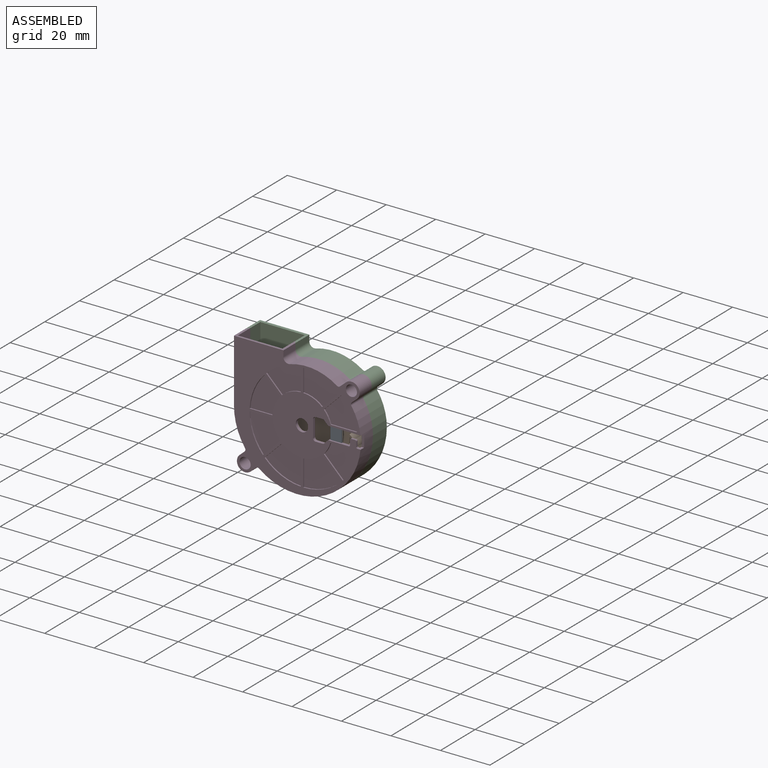
[diagram: assembled view]
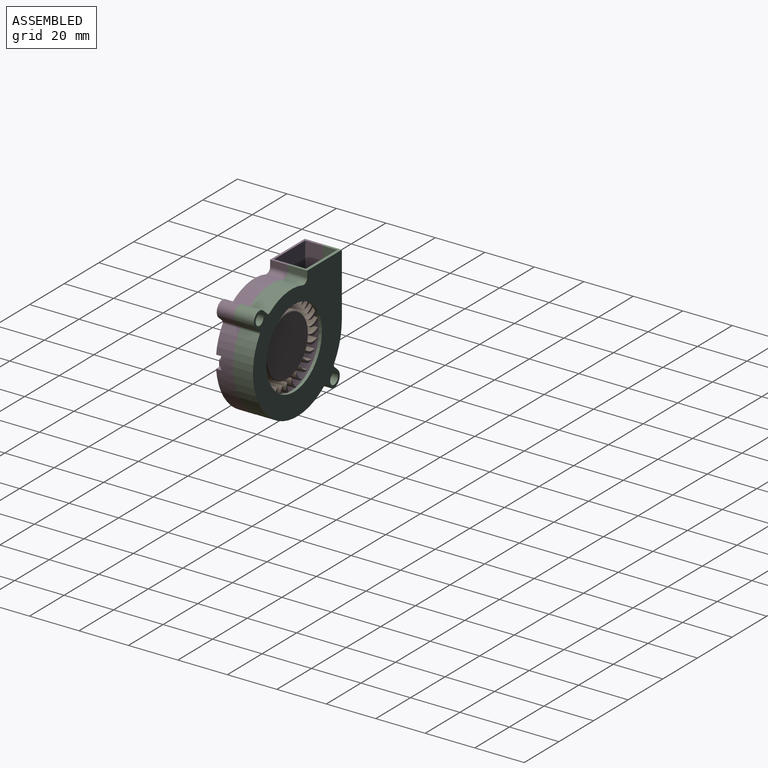
[diagram: assembled view, second angle]
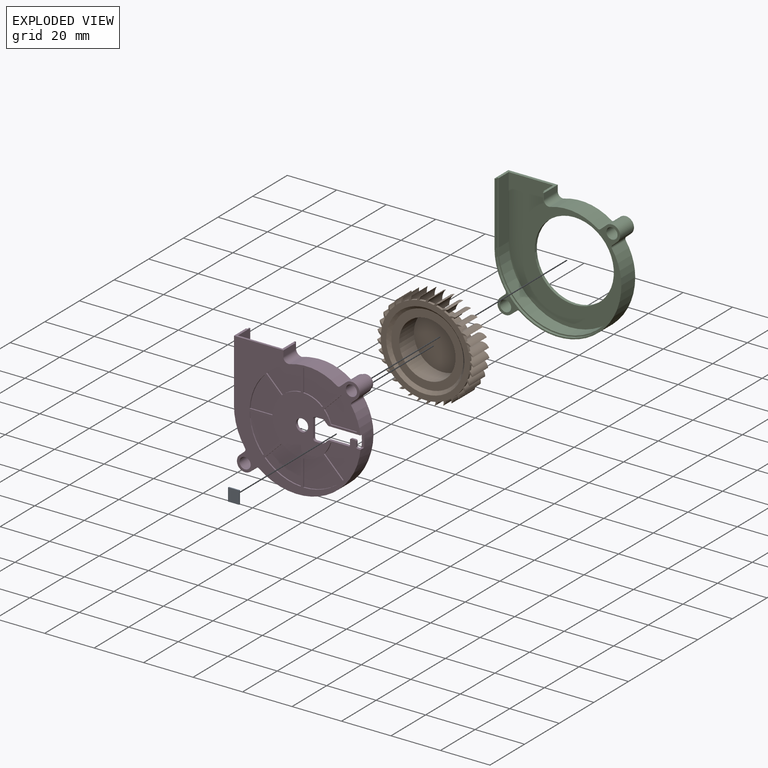
[diagram: exploded view]
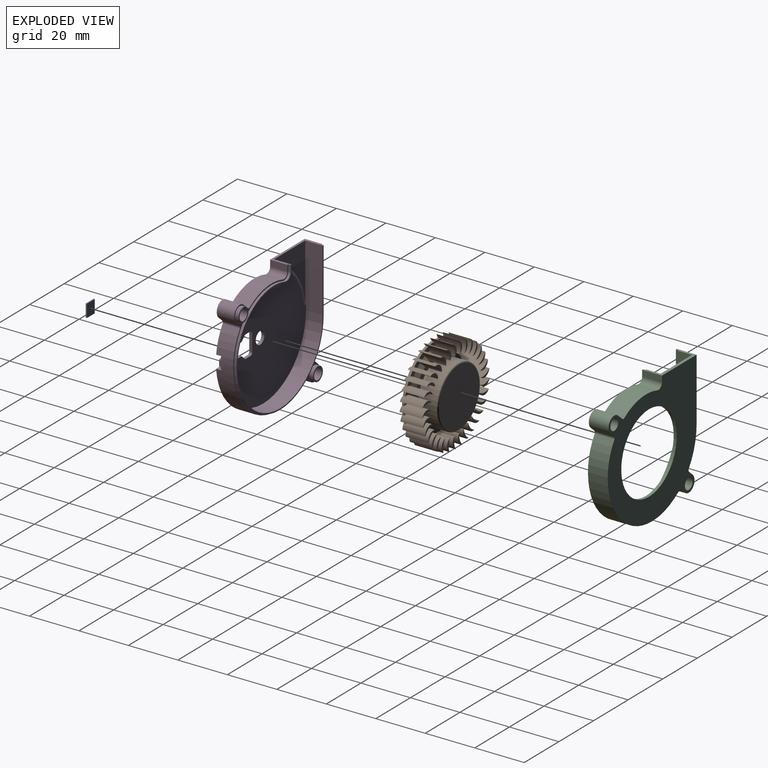
[diagram: exploded view, second angle]
ASSEMBLY  parts=4 mates=3
PART A: 6 faces, bbox 4.5x0.5x5.2 mm
  f0: plane 4.5x0.5mm, normal (0,0,-1), area 2.2mm2, adj f1,f3,f4,f5
  f1: plane 5.2x0.5mm, normal (1,0,0), area 2.6mm2, adj f0,f2,f4,f5
  f2: plane 4.5x0.5mm, normal (0,0,1), area 2.2mm2, adj f1,f3,f4,f5
  f3: plane 5.2x0.5mm, normal (-1,0,0), area 2.6mm2, adj f0,f2,f4,f5
  f4: plane 5.2x4.5mm, normal (0,-1,0), area 23.4mm2, adj f0,f1,f2,f3
  f5: plane 5.2x4.5mm, normal (0,1,0), area 23.4mm2, adj f0,f1,f2,f3
PART B: 207 faces, bbox 39x10.5x38.9 mm
  f0: cylinder r=11.4mm len=22.8mm, axis (0,-1,0), area 608.8mm2, adj f205,f206
  f1: cone r=14.6mm half-angle=45deg, axis (0,-1,0), area 162.1mm2, adj f119,f205
  f2: cylinder r=2.92mm len=9.2mm, axis (0,-1,0), area 52mm2, adj f85,f86,f87,f119,f143,f144
  f3: cylinder r=2.92mm len=9.2mm, axis (0,-1,0), area 52mm2, adj f88,f89,f90,f119,f141,f142
  f4: cylinder r=2.92mm len=9.2mm, axis (0,-1,0), area 52mm2, adj f91,f92,f93,f119,f139,f140
  f5: cylinder r=5.73mm len=9.2mm, axis (0,-1,0), area 44mm2, adj f6,f91,f92,f93,f119,f138
  f6: cylinder r=2.92mm len=9.2mm, axis (0,-1,0), area 52mm2, adj f5,f94,f95,f96,f119,f138
  f7: cylinder r=5.73mm len=9.2mm, axis (0,-1,0), area 44mm2, adj f8,f94,f95,f96,f119,f137
  f8: cylinder r=2.92mm len=9.2mm, axis (0,-1,0), area 52mm2, adj f7,f97,f98,f99,f119,f137
  f9: cylinder r=5.73mm len=9.2mm, axis (0,-1,0), area 44mm2, adj f10,f97,f98,f99,f119,f136
  f10: cylinder r=2.92mm len=9.2mm, axis (0,-1,0), area 52mm2, adj f9,f100,f101,f102,f119,f136
  f11: cylinder r=5.73mm len=9.2mm, axis (0,-1,0), area 44mm2, adj f12,f100,f101,f102,f119,f135
  f12: cylinder r=2.92mm len=9.2mm, axis (0,-1,0), area 52mm2, adj f11,f103,f104,f105,f119,f135
  f13: cylinder r=5.73mm len=9.2mm, axis (0,-1,0), area 44mm2, adj f14,f103,f104,f105,f119,f134
  f14: cylinder r=2.92mm len=9.2mm, axis (0,-1,0), area 52mm2, adj f13,f106,f107,f108,f119,f134
  f15: cylinder r=2.92mm len=9.2mm, axis (0,-1,0), area 52mm2, adj f109,f110,f111,f119,f132,f133
  f16: cylinder r=2.92mm len=9.2mm, axis (0,-1,0), area 52mm2, adj f112,f113,f114,f119,f130,f131
  f17: cylinder r=2.92mm len=9.2mm, axis (0,-1,0), area 52mm2, adj f115,f116,f117,f119,f128,f129
  f18: torus R=11.75mm, axis (0,1,0), area 59.6mm2, adj f19,f121
  f19: cylinder r=12.25mm len=24.5mm, axis (0,-1,0), area 577.3mm2, adj f18,f120
  f20: cone r=14.5mm half-angle=45deg, axis (0,-1,0), area 5.5mm2, adj f118,f120,f123,f125
  f21: cylinder r=18mm len=2.51mm, axis (0,-1,0), area 2.5mm2, adj f118,f119,f123,f125
  f22: cylinder r=18mm len=2.35mm, axis (0,-1,0), area 2.5mm2, adj f24,f119,f200,f202
  f23: cylinder r=18mm len=2.47mm, axis (0,-1,0), area 2.5mm2, adj f25,f119,f122,f203
  f24: plane 2.87x2.61mm, normal (0,1,0), area 4.7mm2, adj f22,f26,f200,f202
  f25: plane 2.53x2.46mm, normal (0,1,0), area 4.7mm2, adj f23,f27,f122,f203
  f26: cone r=14.5mm half-angle=45deg, axis (0,-1,0), area 5.5mm2, adj f24,f120,f200,f202
  f27: cone r=14.5mm half-angle=45deg, axis (0,-1,0), area 5.5mm2, adj f25,f120,f122,f203
  f28: cylinder r=18mm len=2.14mm, axis (0,-1,0), area 2.5mm2, adj f29,f119,f197,f199
  f29: plane 3.17x2.78mm, normal (0,1,0), area 4.7mm2, adj f28,f30,f197,f199
  f30: cone r=14.5mm half-angle=45deg, axis (0,-1,0), area 5.5mm2, adj f29,f120,f197,f199
  f31: cylinder r=18mm len=1.86mm, axis (0,-1,0), area 2.5mm2, adj f32,f119,f194,f196
  f32: plane 3.37x2.85mm, normal (0,1,0), area 4.7mm2, adj f31,f33,f194,f196
  f33: cone r=14.5mm half-angle=45deg, axis (0,-1,0), area 5.5mm2, adj f32,f120,f194,f196
  f34: cylinder r=18mm len=2.01mm, axis (0,-1,0), area 2.5mm2, adj f35,f119,f191,f193
  f35: plane 3.44x2.81mm, normal (0,1,0), area 4.7mm2, adj f34,f36,f191,f193
  f36: cone r=14.5mm half-angle=45deg, axis (0,-1,0), area 5.5mm2, adj f35,f120,f191,f193
  f37: cylinder r=18mm len=2.25mm, axis (0,-1,0), area 2.5mm2, adj f38,f119,f188,f190
  f38: plane 3.38x2.68mm, normal (0,1,0), area 4.7mm2, adj f37,f39,f188,f190
  f39: cone r=14.5mm half-angle=45deg, axis (0,-1,0), area 5.5mm2, adj f38,f120,f188,f190
  f40: cylinder r=18mm len=2.42mm, axis (0,-1,0), area 2.5mm2, adj f41,f119,f185,f187
  f41: plane 3.21x2.44mm, normal (0,1,0), area 4.7mm2, adj f40,f42,f185,f187
  f42: cone r=14.5mm half-angle=45deg, axis (0,-1,0), area 5.5mm2, adj f41,f120,f185,f187
  f43: cylinder r=18mm len=2.5mm, axis (0,-1,0), area 2.5mm2, adj f44,f119,f182,f184
  f44: plane 2.92x2.12mm, normal (0,1,0), area 4.7mm2, adj f43,f45,f182,f184
  f45: cone r=14.5mm half-angle=45deg, axis (0,-1,0), area 5.5mm2, adj f44,f120,f182,f184
  f46: cylinder r=18mm len=2.49mm, axis (0,-1,0), area 2.5mm2, adj f47,f119,f179,f181
  f47: plane 2.6x2.34mm, normal (0,1,0), area 4.7mm2, adj f46,f48,f179,f181
  f48: cone r=14.5mm half-angle=45deg, axis (0,-1,0), area 5.5mm2, adj f47,f120,f179,f181
  f49: cylinder r=18mm len=2.39mm, axis (0,-1,0), area 2.5mm2, adj f50,f119,f176,f178
  f50: plane 2.77x2.56mm, normal (0,1,0), area 4.7mm2, adj f49,f51,f176,f178
  f51: cone r=14.5mm half-angle=45deg, axis (0,-1,0), area 5.5mm2, adj f50,f120,f176,f178
  f52: cylinder r=18mm len=2.2mm, axis (0,-1,0), area 2.5mm2, adj f53,f119,f173,f175
  f53: plane 3.11x2.75mm, normal (0,1,0), area 4.7mm2, adj f52,f54,f173,f175
  f54: cone r=14.5mm half-angle=45deg, axis (0,-1,0), area 5.5mm2, adj f53,f120,f173,f175
  f55: cylinder r=18mm len=1.94mm, axis (0,-1,0), area 2.5mm2, adj f56,f119,f170,f172
  f56: plane 3.33x2.84mm, normal (0,1,0), area 4.7mm2, adj f55,f57,f170,f172
  f57: cone r=14.5mm half-angle=45deg, axis (0,-1,0), area 5.5mm2, adj f56,f120,f170,f172
  f58: cylinder r=18mm len=1.93mm, axis (0,-1,0), area 2.5mm2, adj f59,f119,f167,f169
  f59: plane 3.43x2.83mm, normal (0,1,0), area 4.7mm2, adj f58,f60,f167,f169
  f60: cone r=14.5mm half-angle=45deg, axis (0,-1,0), area 5.5mm2, adj f59,f120,f167,f169
  f61: cylinder r=18mm len=2.2mm, axis (0,-1,0), area 2.5mm2, adj f62,f119,f164,f166
  f62: plane 3.41x2.72mm, normal (0,1,0), area 4.7mm2, adj f61,f63,f164,f166
  f63: cone r=14.5mm half-angle=45deg, axis (0,-1,0), area 5.5mm2, adj f62,f120,f164,f166
  f64: cylinder r=18mm len=2.39mm, axis (0,-1,0), area 2.5mm2, adj f65,f119,f161,f163
  f65: plane 3.26x2.51mm, normal (0,1,0), area 4.7mm2, adj f64,f66,f161,f163
  f66: cone r=14.5mm half-angle=45deg, axis (0,-1,0), area 5.5mm2, adj f65,f120,f161,f163
  f67: cylinder r=18mm len=2.49mm, axis (0,-1,0), area 2.5mm2, adj f68,f119,f158,f160
  f68: plane 3x2.21mm, normal (0,1,0), area 4.7mm2, adj f67,f69,f158,f160
  f69: cone r=14.5mm half-angle=45deg, axis (0,-1,0), area 5.5mm2, adj f68,f120,f158,f160
  f70: cylinder r=18mm len=2.5mm, axis (0,-1,0), area 2.5mm2, adj f71,f119,f155,f157
  f71: plane 2.67x2.22mm, normal (0,1,0), area 4.7mm2, adj f70,f72,f155,f157
  f72: cone r=14.5mm half-angle=45deg, axis (0,-1,0), area 5.5mm2, adj f71,f120,f155,f157
  f73: cylinder r=18mm len=2.42mm, axis (0,-1,0), area 2.5mm2, adj f74,f119,f152,f154
  f74: plane 2.67x2.5mm, normal (0,1,0), area 4.7mm2, adj f73,f75,f152,f154
  f75: cone r=14.5mm half-angle=45deg, axis (0,-1,0), area 5.5mm2, adj f74,f120,f152,f154
  f76: cylinder r=18mm len=2.26mm, axis (0,-1,0), area 2.5mm2, adj f77,f119,f149,f151
  f77: plane 3.04x2.71mm, normal (0,1,0), area 4.7mm2, adj f76,f78,f149,f151
  f78: cone r=14.5mm half-angle=45deg, axis (0,-1,0), area 5.5mm2, adj f77,f120,f149,f151
  f79: cylinder r=18mm len=2.01mm, axis (0,-1,0), area 2.5mm2, adj f80,f119,f146,f148
  f80: plane 3.29x2.83mm, normal (0,1,0), area 4.7mm2, adj f79,f81,f146,f148
  f81: cone r=14.5mm half-angle=45deg, axis (0,-1,0), area 5.5mm2, adj f80,f120,f146,f148
  f82: cylinder r=18mm len=1.85mm, axis (0,-1,0), area 2.5mm2, adj f83,f119,f143,f145
  f83: plane 3.42x2.84mm, normal (0,1,0), area 4.7mm2, adj f82,f84,f143,f145
  f84: cone r=14.5mm half-angle=45deg, axis (0,-1,0), area 5.5mm2, adj f83,f120,f143,f145
  f85: cylinder r=18mm len=2.14mm, axis (0,-1,0), area 2.5mm2, adj f2,f86,f119,f141
  f86: plane 3.43x2.76mm, normal (0,1,0), area 4.7mm2, adj f2,f85,f87,f141
  f87: cone r=14.5mm half-angle=45deg, axis (0,-1,0), area 5.3mm2, adj f2,f86,f120,f141
  f88: cylinder r=18mm len=2.35mm, axis (0,-1,0), area 2.5mm2, adj f3,f89,f119,f139
  f89: plane 3.31x2.57mm, normal (0,1,0), area 4.7mm2, adj f3,f88,f90,f139
  f90: cone r=14.5mm half-angle=45deg, axis (0,-1,0), area 5.3mm2, adj f3,f89,f120,f139
  f91: cylinder r=18mm len=2.47mm, axis (0,-1,0), area 2.5mm2, adj f4,f5,f92,f119
  f92: plane 3.08x2.29mm, normal (0,1,0), area 4.7mm2, adj f4,f5,f91,f93
  f93: cone r=14.5mm half-angle=45deg, axis (0,-1,0), area 5.2mm2, adj f4,f5,f92,f120
  f94: cylinder r=18mm len=2.51mm, axis (0,-1,0), area 2.5mm2, adj f6,f7,f95,f119
  f95: plane 2.74x2.11mm, normal (0,1,0), area 4.7mm2, adj f6,f7,f94,f96
  f96: cone r=14.5mm half-angle=45deg, axis (0,-1,0), area 5.5mm2, adj f6,f7,f95,f120
  f97: cylinder r=18mm len=2.45mm, axis (0,-1,0), area 2.5mm2, adj f8,f9,f98,f119
  f98: plane 2.57x2.48mm, normal (0,1,0), area 4.7mm2, adj f8,f9,f97,f99
  f99: cone r=14.5mm half-angle=45deg, axis (0,-1,0), area 5.5mm2, adj f8,f9,f98,f120
  f100: cylinder r=18mm len=2.31mm, axis (0,-1,0), area 2.5mm2, adj f10,f11,f101,f119
  f101: plane 2.96x2.66mm, normal (0,1,0), area 4.7mm2, adj f10,f11,f100,f102
  f102: cone r=14.5mm half-angle=45deg, axis (0,-1,0), area 5.5mm2, adj f10,f11,f101,f120
  f103: cylinder r=18mm len=2.08mm, axis (0,-1,0), area 2.5mm2, adj f12,f13,f104,f119
  f104: plane 3.23x2.81mm, normal (0,1,0), area 4.7mm2, adj f12,f13,f103,f105
  f105: cone r=14.5mm half-angle=45deg, axis (0,-1,0), area 5.5mm2, adj f12,f13,f104,f120
  f106: cylinder r=18mm len=1.78mm, axis (0,-1,0), area 2.5mm2, adj f14,f107,f119,f132
  f107: plane 3.4x2.85mm, normal (0,1,0), area 4.7mm2, adj f14,f106,f108,f132
  f108: cone r=14.5mm half-angle=45deg, axis (0,-1,0), area 5.5mm2, adj f14,f107,f120,f132
  f109: cylinder r=18mm len=2.08mm, axis (0,-1,0), area 2.5mm2, adj f15,f110,f119,f130
  f110: plane 3.44x2.79mm, normal (0,1,0), area 4.7mm2, adj f15,f109,f111,f130
  f111: cone r=14.5mm half-angle=45deg, axis (0,-1,0), area 5.5mm2, adj f15,f110,f120,f130
  f112: cylinder r=18mm len=2.3mm, axis (0,-1,0), area 2.5mm2, adj f16,f113,f119,f128
  f113: plane 3.35x2.63mm, normal (0,1,0), area 4.7mm2, adj f16,f112,f114,f128
  f114: cone r=14.5mm half-angle=45deg, axis (0,-1,0), area 5.5mm2, adj f16,f113,f120,f128
  f115: cylinder r=18mm len=2.45mm, axis (0,-1,0), area 2.5mm2, adj f17,f116,f119,f126
  f116: plane 3.14x2.37mm, normal (0,1,0), area 4.7mm2, adj f17,f115,f117,f126
  f117: cone r=14.5mm half-angle=45deg, axis (0,-1,0), area 5.5mm2, adj f17,f116,f120,f126
  f118: plane 2.83x2.05mm, normal (0,1,0), area 4.7mm2, adj f20,f21,f123,f125
  f119: plane 38.96x38.91mm, normal (0,-1,0), area 265.7mm2, adj f1,f2,f3,f4,f5,f6,f7,f8
  f120: plane 29x29mm, normal (0,1,0), area 189.1mm2, adj f19,f20,f26,f27,f30,f33,f36,f39
  f121: plane 23.5x23.5mm, normal (0,1,0), area 433.7mm2, adj f18
  f122: cylinder r=2.92mm len=9.2mm, axis (0,-1,0), area 52mm2, adj f23,f25,f27,f119,f123,f124
  f123: cylinder r=5.73mm len=9.2mm, axis (0,-1,0), area 44mm2, adj f20,f21,f118,f119,f122,f124
  f124: plane 5.03x1.97mm, normal (0,1,0), area 3.4mm2, adj f122,f123
  f125: cylinder r=2.92mm len=9.2mm, axis (0,-1,0), area 52mm2, adj f20,f21,f118,f119,f126,f127
  f126: cylinder r=5.73mm len=9.2mm, axis (0,-1,0), area 44mm2, adj f115,f116,f117,f119,f125,f127
  f127: plane 4.77x2.5mm, normal (0,1,0), area 3.4mm2, adj f125,f126
  f128: cylinder r=5.73mm len=9.2mm, axis (0,-1,0), area 44mm2, adj f17,f112,f113,f114,f119,f129
  f129: plane 4.34x3.06mm, normal (0,1,0), area 3.4mm2, adj f17,f128
  f130: cylinder r=5.73mm len=9.2mm, axis (0,-1,0), area 44mm2, adj f16,f109,f110,f111,f119,f131
  f131: plane 3.83x3.61mm, normal (0,1,0), area 3.4mm2, adj f16,f130
  f132: cylinder r=5.73mm len=9.2mm, axis (0,-1,0), area 44mm2, adj f15,f106,f107,f108,f119,f133
  f133: plane 4.13x3.29mm, normal (0,1,0), area 3.4mm2, adj f15,f132
  f134: plane 4.61x2.74mm, normal (0,1,0), area 3.4mm2, adj f13,f14
  f135: plane 4.94x2.19mm, normal (0,1,0), area 3.4mm2, adj f11,f12
  f136: plane 5.09x1.66mm, normal (0,1,0), area 3.4mm2, adj f9,f10
  f137: plane 5.06x1.83mm, normal (0,1,0), area 3.4mm2, adj f7,f8
  f138: plane 4.85x2.37mm, normal (0,1,0), area 3.4mm2, adj f5,f6
  f139: cylinder r=5.73mm len=9.2mm, axis (0,-1,0), area 44mm2, adj f4,f88,f89,f90,f119,f140
  f140: plane 4.46x2.92mm, normal (0,1,0), area 3.4mm2, adj f4,f139
  f141: cylinder r=5.73mm len=9.2mm, axis (0,-1,0), area 44mm2, adj f3,f85,f86,f87,f119,f142
  f142: plane 3.96x3.47mm, normal (0,1,0), area 3.4mm2, adj f3,f141
  f143: cylinder r=5.73mm len=9.2mm, axis (0,-1,0), area 44mm2, adj f2,f82,f83,f84,f119,f144
  f144: plane 4.01x3.43mm, normal (0,1,0), area 3.4mm2, adj f2,f143
  f145: cylinder r=2.92mm len=9.2mm, axis (0,-1,0), area 52mm2, adj f82,f83,f84,f119,f146,f147
  f146: cylinder r=5.73mm len=9.2mm, axis (0,-1,0), area 44mm2, adj f79,f80,f81,f119,f145,f147
  f147: plane 4.5x2.87mm, normal (0,1,0), area 3.4mm2, adj f145,f146
  f148: cylinder r=2.92mm len=9.2mm, axis (0,-1,0), area 52mm2, adj f79,f80,f81,f119,f149,f150
  f149: cylinder r=5.73mm len=9.2mm, axis (0,-1,0), area 44mm2, adj f76,f77,f78,f119,f148,f150
  f150: plane 4.87x2.32mm, normal (0,1,0), area 3.4mm2, adj f148,f149
  f151: cylinder r=2.92mm len=9.2mm, axis (0,-1,0), area 52mm2, adj f76,f77,f78,f119,f152,f153
  f152: cylinder r=5.73mm len=9.2mm, axis (0,-1,0), area 44mm2, adj f73,f74,f75,f119,f151,f153
  f153: plane 5.07x1.79mm, normal (0,1,0), area 3.4mm2, adj f151,f152
  f154: cylinder r=2.92mm len=9.2mm, axis (0,-1,0), area 52mm2, adj f73,f74,f75,f119,f155,f156
  f155: cylinder r=5.73mm len=9.2mm, axis (0,-1,0), area 44mm2, adj f70,f71,f72,f119,f154,f156
  f156: plane 5.09x1.71mm, normal (0,1,0), area 3.4mm2, adj f154,f155
  f157: cylinder r=2.92mm len=9.2mm, axis (0,-1,0), area 52mm2, adj f70,f71,f72,f119,f158,f159
  f158: cylinder r=5.73mm len=9.2mm, axis (0,-1,0), area 44mm2, adj f67,f68,f69,f119,f157,f159
  f159: plane 4.92x2.23mm, normal (0,1,0), area 3.4mm2, adj f157,f158
  f160: cylinder r=2.92mm len=9.2mm, axis (0,-1,0), area 52mm2, adj f67,f68,f69,f119,f161,f162
  f161: cylinder r=5.73mm len=9.2mm, axis (0,-1,0), area 44mm2, adj f64,f65,f66,f119,f160,f162
  f162: plane 4.57x2.78mm, normal (0,1,0), area 3.4mm2, adj f160,f161
  f163: cylinder r=2.92mm len=9.2mm, axis (0,-1,0), area 52mm2, adj f64,f65,f66,f119,f164,f165
  f164: cylinder r=5.73mm len=9.2mm, axis (0,-1,0), area 44mm2, adj f61,f62,f63,f119,f163,f165
  f165: plane 4.09x3.34mm, normal (0,1,0), area 3.4mm2, adj f163,f164
  f166: cylinder r=2.92mm len=9.2mm, axis (0,-1,0), area 52mm2, adj f61,f62,f63,f119,f167,f168
  f167: cylinder r=5.73mm len=9.2mm, axis (0,-1,0), area 44mm2, adj f58,f59,f60,f119,f166,f168
  f168: plane 3.88x3.56mm, normal (0,1,0), area 3.4mm2, adj f166,f167
  f169: cylinder r=2.92mm len=9.2mm, axis (0,-1,0), area 52mm2, adj f58,f59,f60,f119,f170,f171
  f170: cylinder r=5.73mm len=9.2mm, axis (0,-1,0), area 44mm2, adj f55,f56,f57,f119,f169,f171
  f171: plane 4.38x3.01mm, normal (0,1,0), area 3.4mm2, adj f169,f170
  f172: cylinder r=2.92mm len=9.2mm, axis (0,-1,0), area 52mm2, adj f55,f56,f57,f119,f173,f174
  f173: cylinder r=5.73mm len=9.2mm, axis (0,-1,0), area 44mm2, adj f52,f53,f54,f119,f172,f174
  f174: plane 4.8x2.46mm, normal (0,1,0), area 3.4mm2, adj f172,f173
  f175: cylinder r=2.92mm len=9.2mm, axis (0,-1,0), area 52mm2, adj f52,f53,f54,f119,f176,f177
  f176: cylinder r=5.73mm len=9.2mm, axis (0,-1,0), area 44mm2, adj f49,f50,f51,f119,f175,f177
  f177: plane 5.04x1.92mm, normal (0,1,0), area 3.4mm2, adj f175,f176
  f178: cylinder r=2.92mm len=9.2mm, axis (0,-1,0), area 52mm2, adj f49,f50,f51,f119,f179,f180
  f179: cylinder r=5.73mm len=9.2mm, axis (0,-1,0), area 44mm2, adj f46,f47,f48,f119,f178,f180
  f180: plane 5.1x1.58mm, normal (0,1,0), area 3.4mm2, adj f178,f179
  f181: cylinder r=2.92mm len=9.2mm, axis (0,-1,0), area 52mm2, adj f46,f47,f48,f119,f182,f183
  f182: cylinder r=5.73mm len=9.2mm, axis (0,-1,0), area 44mm2, adj f43,f44,f45,f119,f181,f183
  f183: plane 4.98x2.1mm, normal (0,1,0), area 3.4mm2, adj f181,f182
  f184: cylinder r=2.92mm len=9.2mm, axis (0,-1,0), area 52mm2, adj f43,f44,f45,f119,f185,f186
  f185: cylinder r=5.73mm len=9.2mm, axis (0,-1,0), area 44mm2, adj f40,f41,f42,f119,f184,f186
  f186: plane 4.68x2.64mm, normal (0,1,0), area 3.4mm2, adj f184,f185
  f187: cylinder r=2.92mm len=9.2mm, axis (0,-1,0), area 52mm2, adj f40,f41,f42,f119,f188,f189
  f188: cylinder r=5.73mm len=9.2mm, axis (0,-1,0), area 44mm2, adj f37,f38,f39,f119,f187,f189
  f189: plane 4.22x3.2mm, normal (0,1,0), area 3.4mm2, adj f187,f188
  f190: cylinder r=2.92mm len=9.2mm, axis (0,-1,0), area 52mm2, adj f37,f38,f39,f119,f191,f192
  f191: cylinder r=5.73mm len=9.2mm, axis (0,-1,0), area 44mm2, adj f34,f35,f36,f119,f190,f192
  f192: plane 3.74x3.7mm, normal (0,1,0), area 3.4mm2, adj f190,f191
  f193: cylinder r=2.92mm len=9.2mm, axis (0,-1,0), area 52mm2, adj f34,f35,f36,f119,f194,f195
  f194: cylinder r=5.73mm len=9.2mm, axis (0,-1,0), area 44mm2, adj f31,f32,f33,f119,f193,f195
  f195: plane 4.26x3.15mm, normal (0,1,0), area 3.4mm2, adj f193,f194
  f196: cylinder r=2.92mm len=9.2mm, axis (0,-1,0), area 52mm2, adj f31,f32,f33,f119,f197,f198
  f197: cylinder r=5.73mm len=9.2mm, axis (0,-1,0), area 44mm2, adj f28,f29,f30,f119,f196,f198
  f198: plane 4.71x2.6mm, normal (0,1,0), area 3.4mm2, adj f196,f197
  f199: cylinder r=2.92mm len=9.2mm, axis (0,-1,0), area 52mm2, adj f28,f29,f30,f119,f200,f201
  f200: cylinder r=5.73mm len=9.2mm, axis (0,-1,0), area 44mm2, adj f22,f24,f26,f119,f199,f201
  f201: plane 5x2.05mm, normal (0,1,0), area 3.4mm2, adj f199,f200
  f202: cylinder r=2.92mm len=9.2mm, axis (0,-1,0), area 52mm2, adj f22,f24,f26,f119,f203,f204
  f203: cylinder r=5.73mm len=9.2mm, axis (0,-1,0), area 44mm2, adj f23,f25,f27,f119,f202,f204
  f204: plane 5.1x1.54mm, normal (0,1,0), area 3.4mm2, adj f202,f203
  f205: plane 29.2x29.2mm, normal (0,-1,0), area 261.4mm2, adj f0,f1
  f206: plane 22.8x22.8mm, normal (0,-1,0), area 408.3mm2, adj f0
PART C: 35 faces, bbox 51.3x8x51.1 mm
  f0: cylinder r=25.15mm len=50.3mm, axis (0,-1,0), area 79mm2, adj f28,f32,f33,f34
  f1: cylinder r=2.5mm len=3.25mm, axis (0,-1,0), area 4.7mm2, adj f28,f31,f32,f34
  f2: cylinder r=2.25mm len=8mm, axis (0,1,0), area 113.1mm2, adj f28,f29
  f3: cylinder r=2.25mm len=8mm, axis (0,1,0), area 113.1mm2, adj f28,f29
  f4: cylinder r=22.07mm len=19.05mm, axis (0,1,0), area 159.4mm2, adj f20,f21,f28,f29
  f5: cylinder r=3.3mm len=8mm, axis (0,1,0), area 82.9mm2, adj f18,f19,f28,f29
  f6: cylinder r=1mm len=8mm, axis (0,1,0), area 11mm2, adj f14,f15,f28,f29
  f7: cylinder r=16mm len=32mm, axis (0,1,0), area 120.6mm2, adj f29,f30
  f8: cylinder r=24.65mm len=49.3mm, axis (0,-1,0), area 449.3mm2, adj f11,f12,f30,f34
  f9: cylinder r=3mm len=5.8mm, axis (0,-1,0), area 32.6mm2, adj f10,f11,f30,f34
  f10: plane 5.8x2.44mm, normal (-1,0,0), area 14.2mm2, adj f9,f23,f30,f34
  f11: cylinder r=21.07mm len=27.4mm, axis (0,-1,0), area 229.2mm2, adj f8,f9,f30,f34
  f12: plane 25.4x5.8mm, normal (1,0,0), area 147.3mm2, adj f8,f23,f30,f34
  f13: cylinder r=3.3mm len=8mm, axis (0,1,0), area 82.9mm2, adj f14,f27,f28,f29
  f14: plane 8x2.22mm, normal (0.66,0,-0.75), area 23.7mm2, adj f6,f13,f28,f29
  f15: cylinder r=25.65mm len=41.13mm, axis (0,1,0), area 455.4mm2, adj f6,f16,f28,f29
  f16: cylinder r=22.07mm len=12.41mm, axis (0,1,0), area 105.5mm2, adj f15,f17,f28,f29
  f17: cylinder r=1mm len=8mm, axis (0,1,0), area 11.6mm2, adj f16,f18,f28,f29
  f18: plane 8x2.04mm, normal (0.66,0,-0.75), area 21.8mm2, adj f5,f17,f28,f29
  f19: plane 8x2.44mm, normal (-0.66,0,0.75), area 26mm2, adj f5,f20,f28,f29
  f20: cylinder r=1mm len=8mm, axis (0,1,0), area 10.6mm2, adj f4,f19,f28,f29
  f21: cylinder r=2mm len=8mm, axis (0,1,0), area 30mm2, adj f4,f22,f28,f29
  f22: plane 8x2.44mm, normal (1,0,0), area 19.6mm2, adj f21,f23,f28,f29
  f23: plane 20x8mm, normal (0,0,1), area 36.6mm2, adj f10,f12,f22,f24,f28,f29,f30,f31
  f24: plane 25.4x8mm, normal (-1,0,0), area 203.2mm2, adj f23,f25,f28,f29
  f25: cylinder r=25.65mm len=14.47mm, axis (0,1,0), area 122.9mm2, adj f24,f26,f28,f29
  f26: cylinder r=1mm len=8mm, axis (0,1,0), area 11.6mm2, adj f25,f27,f28,f29
  f27: plane 8x1.98mm, normal (-0.66,0,0.75), area 21.1mm2, adj f13,f26,f28,f29
  f28: plane 51.3x51.07mm, normal (0,-1,0), area 126.8mm2, adj f0,f1,f2,f3,f4,f5,f6,f13
  f29: plane 51.3x51.07mm, normal (0,1,0), area 1370.5mm2, adj f2,f3,f4,f5,f6,f7,f13,f14
  f30: plane 50.07x49.3mm, normal (0,-1,0), area 1168mm2, adj f7,f8,f9,f10,f11,f12,f23
  f31: plane 2.44x1mm, normal (-1,0,0), area 2.4mm2, adj f1,f23,f28,f34
  f32: cylinder r=21.57mm len=28.05mm, axis (0,-1,0), area 40.5mm2, adj f0,f1,f28,f34
  f33: plane 25.4x1mm, normal (1,0,0), area 25.4mm2, adj f0,f23,f28,f34
  f34: plane 50.57x50.3mm, normal (0,-1,0), area 75.6mm2, adj f0,f1,f8,f9,f10,f11,f12,f23
PART D: 104 faces, bbox 52.9x8.5x51.4 mm
  f0: torus R=1.41mm, axis (0,-1,0), area 1.6mm2, adj f31,f35,f102,f103
  f1: cylinder r=21.88mm len=15.3mm, axis (0,-1,0), area 8.4mm2, adj f14,f53,f54,f55
  f2: cylinder r=2.82mm len=5.65mm, axis (0,-1,0), area 26.6mm2, adj f15,f41
  f3: cylinder r=2.82mm len=5.65mm, axis (0,-1,0), area 26.6mm2, adj f15,f40
  f4: cylinder r=21.57mm len=28.05mm, axis (0,1,0), area 40.5mm2, adj f15,f16,f37,f38
  f5: cylinder r=21.07mm len=27.4mm, axis (0,1,0), area 266.7mm2, adj f16,f31,f33,f34,f86,f87
  f6: cylinder r=2.5mm len=5mm, axis (0,-1,0), area 18.8mm2, adj f14,f31
  f7: cylinder r=2.25mm len=8.5mm, axis (0,-1,0), area 120.2mm2, adj f14,f40
  f8: cylinder r=2.25mm len=8.5mm, axis (0,-1,0), area 120.2mm2, adj f14,f41
  f9: cylinder r=25.65mm len=41.13mm, axis (0,-1,0), area 393.3mm2, adj f13,f14,f15,f28,f29,f87
  f10: cylinder r=1mm len=7mm, axis (0,-1,0), area 9.3mm2, adj f14,f15,f23,f24
  f11: cylinder r=2mm len=7mm, axis (0,-1,0), area 26.3mm2, adj f14,f15,f22,f23
  f12: cylinder r=3.3mm len=7mm, axis (0,-1,0), area 72.6mm2, adj f14,f15,f17,f30
  f13: plane 12.66x2mm, normal (0,0,1), area 13.2mm2, adj f9,f14,f31,f34,f87,f93,f95,f98
  f14: plane 51.17x51.07mm, normal (0,-1,0), area 1131.7mm2, adj f1,f6,f7,f8,f9,f10,f11,f12
  f15: plane 51.3x51.07mm, normal (0,1,0), area 108.5mm2, adj f2,f3,f4,f9,f10,f11,f12,f17
  f16: plane 50.57x50.3mm, normal (0,1,0), area 75.6mm2, adj f4,f5,f21,f32,f33,f34,f35,f36
  f17: plane 7x1.98mm, normal (-0.66,0,0.75), area 18.5mm2, adj f12,f14,f15,f18
  f18: cylinder r=1mm len=7mm, axis (0,-1,0), area 10.1mm2, adj f14,f15,f17,f19
  f19: cylinder r=25.65mm len=14.47mm, axis (0,-1,0), area 107.6mm2, adj f14,f15,f18,f20
  f20: plane 25.4x7mm, normal (-1,0,0), area 177.8mm2, adj f14,f15,f19,f21
  f21: plane 20x8mm, normal (0,0,1), area 31.2mm2, adj f14,f15,f16,f20,f22,f32,f35,f36
  f22: plane 7x2.44mm, normal (1,0,0), area 17.1mm2, adj f11,f14,f15,f21
  f23: cylinder r=22.07mm len=19.05mm, axis (0,-1,0), area 139.5mm2, adj f10,f11,f14,f15
  f24: plane 7x2.44mm, normal (-0.66,0,0.75), area 22.8mm2, adj f10,f14,f15,f25
  f25: cylinder r=3.3mm len=7mm, axis (0,-1,0), area 72.6mm2, adj f14,f15,f24,f26
  f26: plane 7x2.04mm, normal (0.66,0,-0.75), area 19.1mm2, adj f14,f15,f25,f27
  f27: cylinder r=1mm len=7mm, axis (0,-1,0), area 10.1mm2, adj f14,f15,f26,f28
  f28: cylinder r=22.07mm len=12.41mm, axis (0,-1,0), area 87.1mm2, adj f9,f14,f15,f27,f86,f87
  f29: cylinder r=1mm len=7mm, axis (0,-1,0), area 9.6mm2, adj f9,f14,f15,f30
  f30: plane 7x2.22mm, normal (0.66,0,-0.75), area 20.7mm2, adj f12,f14,f15,f29
  f31: plane 49.16x46.35mm, normal (0,1,0), area 1650.7mm2, adj f0,f5,f6,f13,f33,f34,f35,f81
  f32: plane 7.1x2.44mm, normal (-1,0,0), area 17.4mm2, adj f16,f21,f33,f102
  f33: cylinder r=3mm len=7.1mm, axis (0,1,0), area 38.5mm2, adj f5,f16,f31,f32,f103
  f34: cylinder r=24.65mm len=49.3mm, axis (0,1,0), area 524.7mm2, adj f5,f13,f16,f31,f35,f87
  f35: plane 25.4x7.1mm, normal (1,0,0), area 179.6mm2, adj f0,f16,f21,f31,f34,f102
  f36: plane 25.4x1mm, normal (-1,0,0), area 25.4mm2, adj f15,f16,f21,f37
  f37: cylinder r=25.15mm len=50.3mm, axis (0,1,0), area 79mm2, adj f4,f15,f16,f36
  f38: cylinder r=2.5mm len=3.25mm, axis (0,1,0), area 4.7mm2, adj f4,f15,f16,f39
  f39: plane 2.44x1mm, normal (1,0,0), area 2.4mm2, adj f15,f16,f21,f38
  f40: plane 5.65x5.65mm, normal (0,1,0), area 9.2mm2, adj f3,f7
  f41: plane 5.65x5.65mm, normal (0,1,0), area 9.2mm2, adj f2,f8
  f42: plane 6.99x6.99mm, normal (0.71,0,-0.71), area 4.9mm2, adj f14,f43,f45,f46
  f43: cylinder r=12mm len=7.62mm, axis (0,-1,0), area 4.2mm2, adj f14,f42,f44,f46
  f44: plane 10.54x0.5mm, normal (-1,0,0), area 5.3mm2, adj f14,f43,f45,f46
  f45: cylinder r=21.88mm len=14.61mm, axis (0,-1,0), area 8.2mm2, adj f14,f42,f44,f46
  f46: plane 14.61x13.7mm, normal (0,-1,0), area 127.2mm2, adj f42,f43,f44,f45
  f47: plane 7.67x7.67mm, normal (0.71,0,0.71), area 5.4mm2, adj f14,f48,f50,f51
  f48: cylinder r=12mm len=4.77mm, axis (0,-1,0), area 2.8mm2, adj f14,f47,f49,f51
  f49: plane 10.88x0.5mm, normal (0,0,-1), area 5.4mm2, adj f14,f48,f50,f51
  f50: cylinder r=21.88mm len=12.45mm, axis (0,-1,0), area 7mm2, adj f14,f47,f49,f51
  f51: plane 13.57x12.45mm, normal (0,-1,0), area 105.4mm2, adj f47,f48,f49,f50
  f52: cylinder r=12mm len=7.62mm, axis (0,-1,0), area 4.2mm2, adj f14,f53,f54,f55
  f53: plane 7.67x7.67mm, normal (-0.71,0,-0.71), area 5.4mm2, adj f1,f14,f52,f55
  f54: plane 10.57x0.5mm, normal (1,0,0), area 5.3mm2, adj f1,f14,f52,f55
  f55: plane 15.3x13.73mm, normal (0,-1,0), area 135.9mm2, adj f1,f52,f53,f54
  f56: cylinder r=12mm len=7.62mm, axis (0,-1,0), area 4.2mm2, adj f14,f57,f59,f60
  f57: plane 9.2x0.5mm, normal (1,0,0), area 4.6mm2, adj f14,f56,f58,f60
  f58: cylinder r=21.88mm len=14.58mm, axis (0,-1,0), area 7.9mm2, adj f14,f57,f59,f60
  f59: plane 6.96x6.96mm, normal (-0.71,0,0.71), area 4.9mm2, adj f14,f56,f58,f60
  f60: plane 14.58x12.36mm, normal (0,-1,0), area 115.4mm2, adj f56,f57,f58,f59
  f61: cylinder r=12mm len=4.77mm, axis (0,-1,0), area 2.8mm2, adj f14,f62,f64,f65
  f62: plane 6.99x6.99mm, normal (0.71,0,-0.71), area 4.9mm2, adj f14,f61,f63,f65
  f63: cylinder r=21.88mm len=11.76mm, axis (0,-1,0), area 6.8mm2, adj f14,f62,f64,f65
  f64: plane 10.66x0.5mm, normal (0,0,1), area 5.3mm2, adj f14,f61,f63,f65
  f65: plane 13.36x11.76mm, normal (0,-1,0), area 97mm2, adj f61,f62,f63,f64
  f66: cylinder r=12mm len=7.62mm, axis (0,-1,0), area 4.2mm2, adj f14,f67,f69,f70
  f67: plane 9.17x0.5mm, normal (0,0,1), area 4.6mm2, adj f14,f66,f68,f70
  f68: cylinder r=21.88mm len=13.93mm, axis (0,-1,0), area 7.7mm2, adj f14,f67,f69,f70
  f69: plane 6.3x6.3mm, normal (-0.71,0,-0.71), area 4.5mm2, adj f14,f66,f68,f70
  f70: plane 13.93x12.33mm, normal (0,-1,0), area 107.6mm2, adj f66,f67,f68,f69
  f71: plane 9.17x0.5mm, normal (-1,0,0), area 4.6mm2, adj f14,f72,f74,f75
  f72: cylinder r=12mm len=7.62mm, axis (0,-1,0), area 4.2mm2, adj f14,f71,f73,f75
  f73: plane 6.3x6.3mm, normal (0.71,0,0.71), area 4.5mm2, adj f14,f72,f74,f75
  f74: cylinder r=21.88mm len=13.93mm, axis (0,-1,0), area 7.7mm2, adj f14,f71,f73,f75
  f75: plane 13.93x12.33mm, normal (0,-1,0), area 107.6mm2, adj f71,f72,f73,f74
  f76: cylinder r=12mm len=7.62mm, axis (0,-1,0), area 4.2mm2, adj f14,f77,f79,f80
  f77: plane 6.96x6.96mm, normal (-0.71,0,0.71), area 4.9mm2, adj f14,f76,f78,f80
  f78: cylinder r=21.88mm len=14.58mm, axis (0,-1,0), area 7.9mm2, adj f14,f77,f79,f80
  f79: plane 9.2x0.5mm, normal (0,0,-1), area 4.6mm2, adj f14,f76,f78,f80
  f80: plane 14.58x12.36mm, normal (0,-1,0), area 115.4mm2, adj f76,f77,f78,f79
  f81: plane 1.31x1.31mm, normal (-0.71,0,0.71), area 2.2mm2, adj f14,f31,f92,f93
  f82: plane 2.79x1.2mm, normal (0,0,1), area 3.3mm2, adj f14,f31,f91,f92
  f83: plane 7x1.2mm, normal (1,0,0), area 8.4mm2, adj f14,f31,f88,f91
  f84: plane 2.79x1.2mm, normal (0,0,-1), area 3.3mm2, adj f14,f31,f88,f90
  f85: plane 1.31x1.31mm, normal (-0.71,0,-0.71), area 2.2mm2, adj f14,f31,f89,f90
  f86: plane 12.63x2mm, normal (0,0,-1), area 16mm2, adj f5,f14,f28,f31,f87,f89
  f87: plane 5.2x1.16mm, normal (0,-1,0), area 5.2mm2, adj f5,f9,f13,f28,f34,f86
  f88: cylinder r=1mm len=1.2mm, axis (0,1,0), area 1.9mm2, adj f14,f31,f83,f84
  f89: cylinder r=1mm len=1.2mm, axis (0,-1,0), area 0.9mm2, adj f14,f31,f85,f86
  f90: cylinder r=1mm len=1.2mm, axis (0,1,0), area 0.9mm2, adj f14,f31,f84,f85
  f91: cylinder r=1mm len=1.2mm, axis (0,1,0), area 1.9mm2, adj f14,f31,f82,f83
  f92: cylinder r=1mm len=1.2mm, axis (0,1,0), area 0.9mm2, adj f14,f31,f81,f82
  f93: cylinder r=1mm len=1.2mm, axis (0,-1,0), area 0.9mm2, adj f13,f14,f31,f81
  f94: plane 2x0.8mm, normal (1,0,0), area 1.6mm2, adj f14,f95,f100,f101
  f95: plane 3.5x3mm, normal (0,1,0), area 7.5mm2, adj f13,f94,f96,f97,f98,f99,f100,f101
  f96: plane 2x0.8mm, normal (-1,0,0), area 1.6mm2, adj f14,f95,f98,f99
  f97: plane 1.5x0.8mm, normal (0,0,1), area 1.2mm2, adj f14,f95,f99,f100
  f98: cylinder r=0.5mm len=0.8mm, axis (0,1,0), area 0.6mm2, adj f13,f14,f95,f96
  f99: cylinder r=0.5mm len=0.8mm, axis (0,1,0), area 0.6mm2, adj f14,f95,f96,f97
  f100: cylinder r=0.5mm len=0.8mm, axis (0,-1,0), area 0.6mm2, adj f14,f94,f95,f97
  f101: cylinder r=0.5mm len=0.8mm, axis (0,-1,0), area 0.6mm2, adj f13,f14,f94,f95
  f102: plane 22.44x18mm, normal (0,1,0), area 150.3mm2, adj f0,f21,f32,f35,f103
  f103: torus R=22.35mm, axis (0,1,0), area 37.3mm2, adj f0,f31,f33,f102
PLACE A at identity
PLACE B t=(0,1.7,0)mm
PLACE C t=(0,15,0)mm
PLACE D at identity
MATE fastened A.f0 <-> D.f13  axis (0,0,-1) through (11.01,1.2,-2.6)mm
MATE revolute B.f0 <-> D.f6  axis (0,-1,0) through (0,1.7,0)mm
MATE fastened D.f3 <-> C.f2  axis (0,1,0) through (20,7,18)mm
